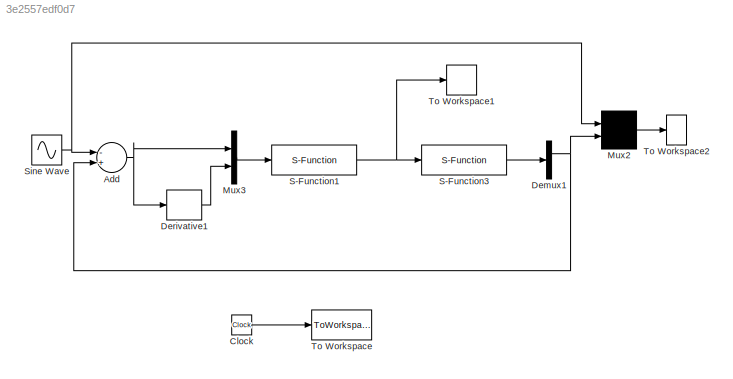
MODEL slx_3e2557edf0d7
KIND model
CONFIG AbsTol = auto
CONFIG FixedStep = 0.01
CONFIG MaxStep = auto
CONFIG MinStep = auto
CONFIG RelTol = 1e-3
CONFIG SampleTimeConstraint = Unconstrained
CONFIG Solver = ode45
CONFIG SolverMode = Auto
CONFIG SolverName = ode45
CONFIG StartTime = 0.0
CONFIG StopTime = 10
BLOCK [Sum] Add
  InputSameDT = off
  Inputs = -+
  OutDataTypeStr = Inherit: Inherit via internal rule
  Ports = [2, 1]
  SaturateOnIntegerOverflow = off
BLOCK [Clock] Clock
BLOCK [Demux] Demux1
  DisplayOption = bar
  Outputs = 2
  Ports = [1, 2]
BLOCK [Derivative] Derivative1
BLOCK [Mux] Mux2
  Inputs = 2
  Ports = [2, 1]
BLOCK [Mux] Mux3
  DisplayOption = bar
  Inputs = 2
  Ports = [2, 1]
BLOCK [S-Function] S-Function1
  FunctionName = chap7_3ctrl
  Ports = [1, 1]
  SFunctionModules = 'chap7_3ctrl'
BLOCK [S-Function] S-Function3
  FunctionName = chap7_3plant
  Ports = [1, 1]
  SFunctionModules = 'chap7_3plant'
BLOCK [Sin] Sine Wave
  Amplitude = 0.1
  Ports = [0, 1]
  SampleTime = 0
BLOCK [ToWorkspace] To Workspace
  FixptAsFi = on
  MaxDataPoints = inf
  Ports = [1]
  SampleTime = -1
  Save2DSignal = 3-D array (concatenate along third dimension)
  VariableName = t
BLOCK [ToWorkspace] To Workspace1
  FixptAsFi = on
  MaxDataPoints = inf
  Ports = [1]
  SampleTime = -1
  Save2DSignal = 3-D array (concatenate along third dimension)
  VariableName = ut
BLOCK [ToWorkspace] To Workspace2
  FixptAsFi = on
  MaxDataPoints = inf
  Ports = [1]
  SampleTime = -1
  Save2DSignal = 3-D array (concatenate along third dimension)
  VariableName = y
NET Add:1 -> Derivative1:1, Mux3:1
LINE Clock:1 -> To Workspace:1
NET Demux1:1 -> Add:2, Mux2:2
LINE Derivative1:1 -> Mux3:2
LINE Mux2:1 -> To Workspace2:1
LINE Mux3:1 -> S-Function1:1
NET S-Function1:1 -> S-Function3:1, To Workspace1:1
LINE S-Function3:1 -> Demux1:1
NET Sine Wave:1 -> Add:1, Mux2:1
note: NET lines group one-source signal fan-out (src -> all destinations, sorted); 1:1 wires keep LINE
